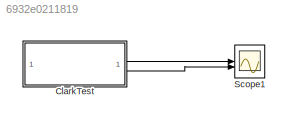
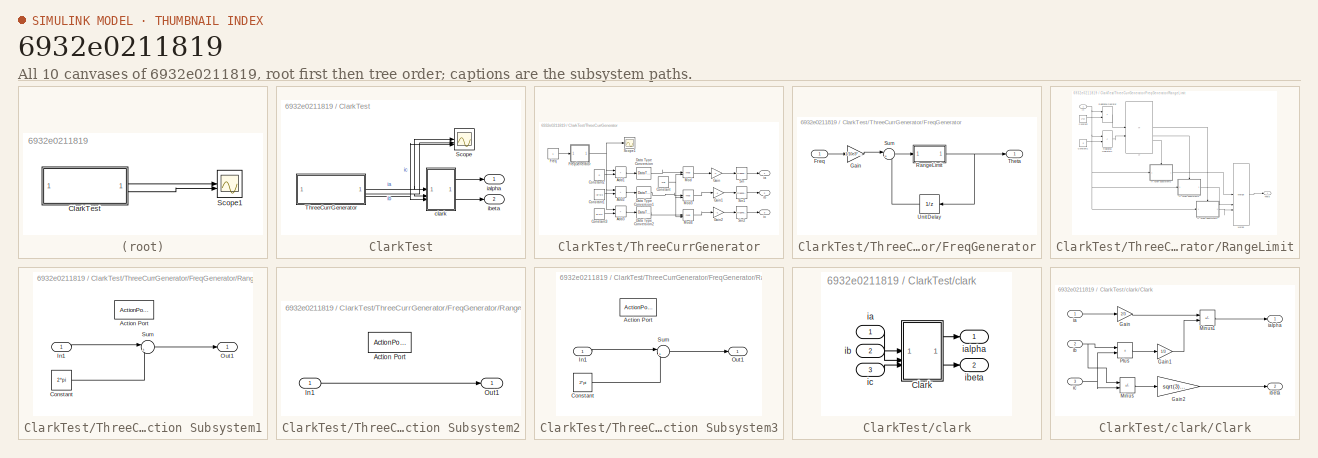
[diagram: thumbnail index - all 10 canvases of the model, root first then tree order]
MODEL slx_6932e0211819
KIND model
CONFIG AbsTol = auto
CONFIG EnableMultiTasking = off
CONFIG FixedStep = 1e-4
CONFIG MaxStep = auto
CONFIG MinStep = auto
CONFIG RelTol = 1e-3
CONFIG SampleTimeConstraint = Unconstrained
CONFIG SolverName = FixedStepAuto
CONFIG StartTime = 0.0
CONFIG StopTime = 10.0
BLOCK [SubSystem] ClarkTest
  TreatAsAtomicUnit = on
BLOCK [Scope] ClarkTest/Scope
  Floating = off
  NumInputPorts = 3
  ScopeSpecificationString = Simulink.scopes.TimeScopeBlockCfg('CurrentConfiguration', extmgr.ConfigurationSet(extmgr.Configuration('Core','General UI',true),extmgr.Configuration('Core','Source UI',true),extmgr.Configuration('Sources','WiredSimulink',true,'DataLoggingVariableName','ScopeData3'),extmgr.Configuration('Visuals','Time Domain',true,'SerializedDisplays',{struct('MinYLimReal','-1.25','MaxYLimReal','1.25','YLabelReal...<+1434ch>
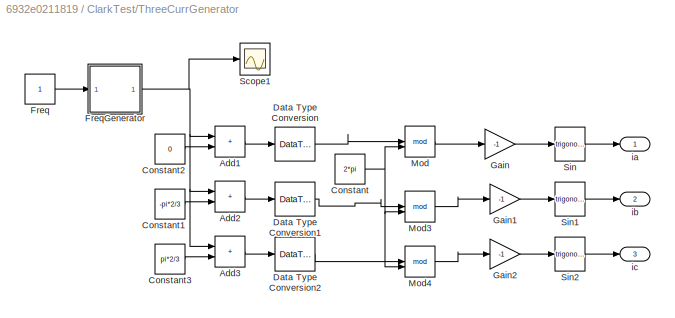
BLOCK [SubSystem] ClarkTest/ThreeCurrGenerator
BLOCK [Sum] ClarkTest/ThreeCurrGenerator/Add1
  AccumDataTypeStr = single
  IconShape = rectangular
  OutDataTypeStr = single
BLOCK [Sum] ClarkTest/ThreeCurrGenerator/Add2
  AccumDataTypeStr = single
  IconShape = rectangular
  OutDataTypeStr = single
BLOCK [Sum] ClarkTest/ThreeCurrGenerator/Add3
  AccumDataTypeStr = single
  IconShape = rectangular
  OutDataTypeStr = single
BLOCK [Constant] ClarkTest/ThreeCurrGenerator/Constant
  OutDataTypeStr = single
  Value = 2*pi
BLOCK [Constant] ClarkTest/ThreeCurrGenerator/Constant1
  OutDataTypeStr = single
  Value = -pi*2/3
BLOCK [Constant] ClarkTest/ThreeCurrGenerator/Constant2
  OutDataTypeStr = single
  Value = 0
BLOCK [Constant] ClarkTest/ThreeCurrGenerator/Constant3
  OutDataTypeStr = single
  Value = pi*2/3
BLOCK [DataTypeConversion] ClarkTest/ThreeCurrGenerator/Data Type Conversion
  OutDataTypeStr = single
  RndMeth = Floor
  SaturateOnIntegerOverflow = off
BLOCK [DataTypeConversion] ClarkTest/ThreeCurrGenerator/Data Type Conversion1
  OutDataTypeStr = single
  RndMeth = Floor
  SaturateOnIntegerOverflow = off
BLOCK [DataTypeConversion] ClarkTest/ThreeCurrGenerator/Data Type Conversion2
  OutDataTypeStr = single
  RndMeth = Floor
  SaturateOnIntegerOverflow = off
BLOCK [Constant] ClarkTest/ThreeCurrGenerator/Freq
  OutDataTypeStr = single
BLOCK [SubSystem] ClarkTest/ThreeCurrGenerator/FreqGenerator
BLOCK [Inport] ClarkTest/ThreeCurrGenerator/FreqGenerator/Freq
BLOCK [Gain] ClarkTest/ThreeCurrGenerator/FreqGenerator/Gain
  Gain = 1/10e3*2*pi
  OutDataTypeStr = single
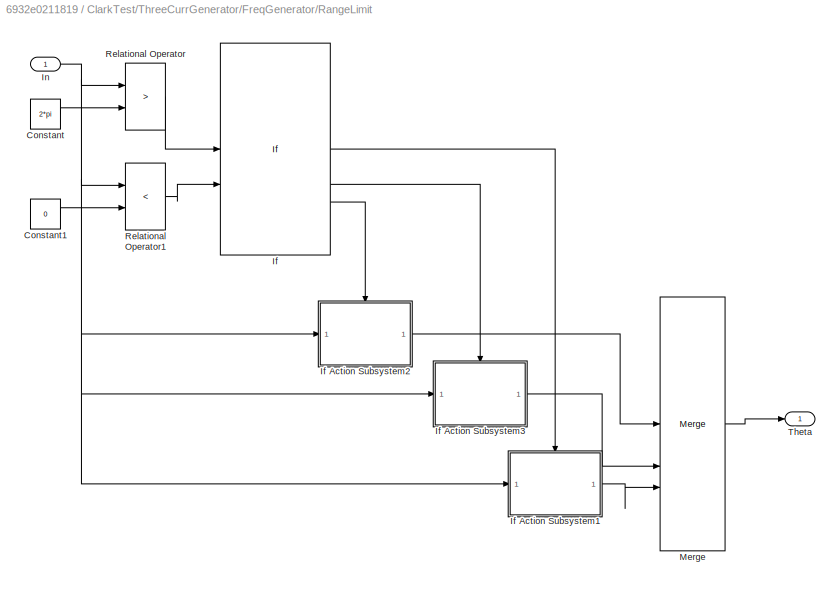
BLOCK [SubSystem] ClarkTest/ThreeCurrGenerator/FreqGenerator/RangeLimit
BLOCK [Constant] ClarkTest/ThreeCurrGenerator/FreqGenerator/RangeLimit/Constant
  OutDataTypeStr = single
  SampleTime = -1
  Value = 2*pi
BLOCK [Constant] ClarkTest/ThreeCurrGenerator/FreqGenerator/RangeLimit/Constant1
  OutDataTypeStr = single
  SampleTime = -1
  Value = 0
BLOCK [If] ClarkTest/ThreeCurrGenerator/FreqGenerator/RangeLimit/If
  ElseIfExpressions = u2
  IfExpression = u1
  NumInputs = 2
BLOCK [SubSystem] ClarkTest/ThreeCurrGenerator/FreqGenerator/RangeLimit/If Action Subsystem1
  TreatAsAtomicUnit = on
BLOCK [ActionPort] ClarkTest/ThreeCurrGenerator/FreqGenerator/RangeLimit/If Action Subsystem1/Action Port
  ActionPortLabel = if(u1)
BLOCK [Constant] ClarkTest/ThreeCurrGenerator/FreqGenerator/RangeLimit/If Action Subsystem1/Constant
  OutDataTypeStr = single
  SampleTime = -1
  Value = 2*pi
BLOCK [Inport] ClarkTest/ThreeCurrGenerator/FreqGenerator/RangeLimit/If Action Subsystem1/In1
BLOCK [Outport] ClarkTest/ThreeCurrGenerator/FreqGenerator/RangeLimit/If Action Subsystem1/Out1
BLOCK [Sum] ClarkTest/ThreeCurrGenerator/FreqGenerator/RangeLimit/If Action Subsystem1/Sum
  Inputs = |+-
BLOCK [SubSystem] ClarkTest/ThreeCurrGenerator/FreqGenerator/RangeLimit/If Action Subsystem2
  TreatAsAtomicUnit = on
BLOCK [ActionPort] ClarkTest/ThreeCurrGenerator/FreqGenerator/RangeLimit/If Action Subsystem2/Action Port
  ActionPortLabel = else
BLOCK [Inport] ClarkTest/ThreeCurrGenerator/FreqGenerator/RangeLimit/If Action Subsystem2/In1
BLOCK [Outport] ClarkTest/ThreeCurrGenerator/FreqGenerator/RangeLimit/If Action Subsystem2/Out1
BLOCK [SubSystem] ClarkTest/ThreeCurrGenerator/FreqGenerator/RangeLimit/If Action Subsystem3
  TreatAsAtomicUnit = on
BLOCK [ActionPort] ClarkTest/ThreeCurrGenerator/FreqGenerator/RangeLimit/If Action Subsystem3/Action Port
  ActionPortLabel = elseif(u2)
BLOCK [Constant] ClarkTest/ThreeCurrGenerator/FreqGenerator/RangeLimit/If Action Subsystem3/Constant
  OutDataTypeStr = single
  SampleTime = -1
  Value = 2*pi
BLOCK [Inport] ClarkTest/ThreeCurrGenerator/FreqGenerator/RangeLimit/If Action Subsystem3/In1
BLOCK [Outport] ClarkTest/ThreeCurrGenerator/FreqGenerator/RangeLimit/If Action Subsystem3/Out1
BLOCK [Sum] ClarkTest/ThreeCurrGenerator/FreqGenerator/RangeLimit/If Action Subsystem3/Sum
  Inputs = |++
BLOCK [Inport] ClarkTest/ThreeCurrGenerator/FreqGenerator/RangeLimit/In
BLOCK [Merge] ClarkTest/ThreeCurrGenerator/FreqGenerator/RangeLimit/Merge
  Inputs = 3
BLOCK [RelationalOperator] ClarkTest/ThreeCurrGenerator/FreqGenerator/RangeLimit/Relational Operator
  InputSameDT = off
  Operator = >
  OutDataTypeStr = boolean
  RndMeth = Simplest
BLOCK [RelationalOperator] ClarkTest/ThreeCurrGenerator/FreqGenerator/RangeLimit/Relational Operator1
  InputSameDT = off
  Operator = <
  OutDataTypeStr = boolean
  RndMeth = Simplest
BLOCK [Outport] ClarkTest/ThreeCurrGenerator/FreqGenerator/RangeLimit/Theta
BLOCK [Sum] ClarkTest/ThreeCurrGenerator/FreqGenerator/Sum
  Inputs = |++
  OutDataTypeStr = Inherit: Same as first input
BLOCK [Outport] ClarkTest/ThreeCurrGenerator/FreqGenerator/Theta
BLOCK [UnitDelay] ClarkTest/ThreeCurrGenerator/FreqGenerator/Unit Delay
  HasFrameUpgradeWarning = on
  NameLocation = top
  SampleTime = -1
BLOCK [Gain] ClarkTest/ThreeCurrGenerator/Gain
  Gain = -1
BLOCK [Gain] ClarkTest/ThreeCurrGenerator/Gain1
  Gain = -1
BLOCK [Gain] ClarkTest/ThreeCurrGenerator/Gain2
  Gain = -1
BLOCK [Math] ClarkTest/ThreeCurrGenerator/Mod
  Operator = mod
BLOCK [Math] ClarkTest/ThreeCurrGenerator/Mod3
  Operator = mod
BLOCK [Math] ClarkTest/ThreeCurrGenerator/Mod4
  Operator = mod
BLOCK [Scope] ClarkTest/ThreeCurrGenerator/Scope1
  Floating = off
  NumInputPorts = 1
  ScopeSpecificationString = Simulink.scopes.TimeScopeBlockCfg('CurrentConfiguration', extmgr.ConfigurationSet(extmgr.Configuration('Core','General UI',true),extmgr.Configuration('Core','Source UI',true),extmgr.Configuration('Sources','WiredSimulink',true),extmgr.Configuration('Visuals','Time Domain',true,'SerializedDisplays',{struct('MinYLimReal','-0.78536','MaxYLimReal','7.06826','YLabelReal','','MinYLimMag','0.00000','MaxY...<+1333ch>
BLOCK [Trigonometry] ClarkTest/ThreeCurrGenerator/Sin
  ApproximationMethod = Lookup
BLOCK [Trigonometry] ClarkTest/ThreeCurrGenerator/Sin1
  ApproximationMethod = Lookup
BLOCK [Trigonometry] ClarkTest/ThreeCurrGenerator/Sin2
  ApproximationMethod = Lookup
BLOCK [Outport] ClarkTest/ThreeCurrGenerator/ia
BLOCK [Outport] ClarkTest/ThreeCurrGenerator/ib
  Port = 2
BLOCK [Outport] ClarkTest/ThreeCurrGenerator/ic
  Port = 3
BLOCK [SubSystem] ClarkTest/clark
BLOCK [SubSystem] ClarkTest/clark/Clark
BLOCK [Gain] ClarkTest/clark/Clark/Gain
  Gain = 2/3
BLOCK [Gain] ClarkTest/clark/Clark/Gain1
  Gain = 1/3
BLOCK [Gain] ClarkTest/clark/Clark/Gain2
  Gain = sqrt(3)/3
BLOCK [Sum] ClarkTest/clark/Clark/Minus
  IconShape = rectangular
  Inputs = +-
BLOCK [Sum] ClarkTest/clark/Clark/Minus1
  IconShape = rectangular
  Inputs = +-
BLOCK [Sum] ClarkTest/clark/Clark/Plus
  IconShape = rectangular
BLOCK [Inport] ClarkTest/clark/Clark/ia
BLOCK [Outport] ClarkTest/clark/Clark/ialpha
BLOCK [Inport] ClarkTest/clark/Clark/ib
  Port = 2
BLOCK [Outport] ClarkTest/clark/Clark/ibeta
  Port = 2
BLOCK [Inport] ClarkTest/clark/Clark/ic
  Port = 3
BLOCK [Inport] ClarkTest/clark/ia
BLOCK [Outport] ClarkTest/clark/ialpha
BLOCK [Inport] ClarkTest/clark/ib
  Port = 2
BLOCK [Outport] ClarkTest/clark/ibeta
  Port = 2
BLOCK [Inport] ClarkTest/clark/ic
  Port = 3
BLOCK [Outport] ClarkTest/ialpha
BLOCK [Outport] ClarkTest/ibeta
  Port = 2
BLOCK [Scope] Scope1
  Floating = off
  NumInputPorts = 2
  ScopeSpecificationString = Simulink.scopes.TimeScopeBlockCfg('CurrentConfiguration', extmgr.ConfigurationSet(extmgr.Configuration('Core','General UI',true),extmgr.Configuration('Core','Source UI',true),extmgr.Configuration('Sources','WiredSimulink',true,'DataLoggingVariableName','ScopeData2'),extmgr.Configuration('Visuals','Time Domain',true,'SerializedDisplays',{struct('MinYLimReal','-1.25','MaxYLimReal','1.25','YLabelReal...<+1366ch>
LINE ClarkTest/ThreeCurrGenerator/Add1:1 -> ClarkTest/ThreeCurrGenerator/Data Type Conversion:1
LINE ClarkTest/ThreeCurrGenerator/Add2:1 -> ClarkTest/ThreeCurrGenerator/Data Type Conversion1:1
LINE ClarkTest/ThreeCurrGenerator/Add3:1 -> ClarkTest/ThreeCurrGenerator/Data Type Conversion2:1
LINE ClarkTest/ThreeCurrGenerator/Constant1:1 -> ClarkTest/ThreeCurrGenerator/Add2:2
LINE ClarkTest/ThreeCurrGenerator/Constant2:1 -> ClarkTest/ThreeCurrGenerator/Add1:2
LINE ClarkTest/ThreeCurrGenerator/Constant3:1 -> ClarkTest/ThreeCurrGenerator/Add3:2
NET ClarkTest/ThreeCurrGenerator/Constant:1 -> ClarkTest/ThreeCurrGenerator/Mod3:2, ClarkTest/ThreeCurrGenerator/Mod4:2, ClarkTest/ThreeCurrGenerator/Mod:2
LINE ClarkTest/ThreeCurrGenerator/Data Type Conversion1:1 -> ClarkTest/ThreeCurrGenerator/Mod3:1
LINE ClarkTest/ThreeCurrGenerator/Data Type Conversion2:1 -> ClarkTest/ThreeCurrGenerator/Mod4:1
LINE ClarkTest/ThreeCurrGenerator/Data Type Conversion:1 -> ClarkTest/ThreeCurrGenerator/Mod:1
LINE ClarkTest/ThreeCurrGenerator/Freq:1 -> ClarkTest/ThreeCurrGenerator/FreqGenerator:1
LINE ClarkTest/ThreeCurrGenerator/FreqGenerator/Freq:1 -> ClarkTest/ThreeCurrGenerator/FreqGenerator/Gain:1
LINE ClarkTest/ThreeCurrGenerator/FreqGenerator/Gain:1 -> ClarkTest/ThreeCurrGenerator/FreqGenerator/Sum:1
LINE ClarkTest/ThreeCurrGenerator/FreqGenerator/RangeLimit/Constant1:1 -> ClarkTest/ThreeCurrGenerator/FreqGenerator/RangeLimit/Relational Operator1:2
LINE ClarkTest/ThreeCurrGenerator/FreqGenerator/RangeLimit/Constant:1 -> ClarkTest/ThreeCurrGenerator/FreqGenerator/RangeLimit/Relational Operator:2
LINE ClarkTest/ThreeCurrGenerator/FreqGenerator/RangeLimit/If Action Subsystem1/Constant:1 -> ClarkTest/ThreeCurrGenerator/FreqGenerator/RangeLimit/If Action Subsystem1/Sum:2
LINE ClarkTest/ThreeCurrGenerator/FreqGenerator/RangeLimit/If Action Subsystem1/In1:1 -> ClarkTest/ThreeCurrGenerator/FreqGenerator/RangeLimit/If Action Subsystem1/Sum:1
LINE ClarkTest/ThreeCurrGenerator/FreqGenerator/RangeLimit/If Action Subsystem1/Sum:1 -> ClarkTest/ThreeCurrGenerator/FreqGenerator/RangeLimit/If Action Subsystem1/Out1:1
LINE ClarkTest/ThreeCurrGenerator/FreqGenerator/RangeLimit/If Action Subsystem1:1 -> ClarkTest/ThreeCurrGenerator/FreqGenerator/RangeLimit/Merge:3
LINE ClarkTest/ThreeCurrGenerator/FreqGenerator/RangeLimit/If Action Subsystem2/In1:1 -> ClarkTest/ThreeCurrGenerator/FreqGenerator/RangeLimit/If Action Subsystem2/Out1:1
LINE ClarkTest/ThreeCurrGenerator/FreqGenerator/RangeLimit/If Action Subsystem2:1 -> ClarkTest/ThreeCurrGenerator/FreqGenerator/RangeLimit/Merge:1
LINE ClarkTest/ThreeCurrGenerator/FreqGenerator/RangeLimit/If Action Subsystem3/Constant:1 -> ClarkTest/ThreeCurrGenerator/FreqGenerator/RangeLimit/If Action Subsystem3/Sum:2
LINE ClarkTest/ThreeCurrGenerator/FreqGenerator/RangeLimit/If Action Subsystem3/In1:1 -> ClarkTest/ThreeCurrGenerator/FreqGenerator/RangeLimit/If Action Subsystem3/Sum:1
LINE ClarkTest/ThreeCurrGenerator/FreqGenerator/RangeLimit/If Action Subsystem3/Sum:1 -> ClarkTest/ThreeCurrGenerator/FreqGenerator/RangeLimit/If Action Subsystem3/Out1:1
LINE ClarkTest/ThreeCurrGenerator/FreqGenerator/RangeLimit/If Action Subsystem3:1 -> ClarkTest/ThreeCurrGenerator/FreqGenerator/RangeLimit/Merge:2
LINE ClarkTest/ThreeCurrGenerator/FreqGenerator/RangeLimit/If:1 -> ClarkTest/ThreeCurrGenerator/FreqGenerator/RangeLimit/If Action Subsystem1:ifaction
LINE ClarkTest/ThreeCurrGenerator/FreqGenerator/RangeLimit/If:2 -> ClarkTest/ThreeCurrGenerator/FreqGenerator/RangeLimit/If Action Subsystem3:ifaction
LINE ClarkTest/ThreeCurrGenerator/FreqGenerator/RangeLimit/If:3 -> ClarkTest/ThreeCurrGenerator/FreqGenerator/RangeLimit/If Action Subsystem2:ifaction
NET ClarkTest/ThreeCurrGenerator/FreqGenerator/RangeLimit/In:1 -> ClarkTest/ThreeCurrGenerator/FreqGenerator/RangeLimit/If Action Subsystem1:1, ClarkTest/ThreeCurrGenerator/FreqGenerator/RangeLimit/If Action Subsystem2:1, ClarkTest/ThreeCurrGenerator/FreqGenerator/RangeLimit/If Action Subsystem3:1, ClarkTest/ThreeCurrGenerator/FreqGenerator/RangeLimit/Relational Operator1:1, ClarkTest/ThreeCurrGenerator/FreqGenerator/RangeLimit/Relational Operator:1
LINE ClarkTest/ThreeCurrGenerator/FreqGenerator/RangeLimit/Merge:1 -> ClarkTest/ThreeCurrGenerator/FreqGenerator/RangeLimit/Theta:1
LINE ClarkTest/ThreeCurrGenerator/FreqGenerator/RangeLimit/Relational Operator1:1 -> ClarkTest/ThreeCurrGenerator/FreqGenerator/RangeLimit/If:2
LINE ClarkTest/ThreeCurrGenerator/FreqGenerator/RangeLimit/Relational Operator:1 -> ClarkTest/ThreeCurrGenerator/FreqGenerator/RangeLimit/If:1
NET ClarkTest/ThreeCurrGenerator/FreqGenerator/RangeLimit:1 -> ClarkTest/ThreeCurrGenerator/FreqGenerator/Theta:1, ClarkTest/ThreeCurrGenerator/FreqGenerator/Unit Delay:1
LINE ClarkTest/ThreeCurrGenerator/FreqGenerator/Sum:1 -> ClarkTest/ThreeCurrGenerator/FreqGenerator/RangeLimit:1
LINE ClarkTest/ThreeCurrGenerator/FreqGenerator/Unit Delay:1 -> ClarkTest/ThreeCurrGenerator/FreqGenerator/Sum:2
NET ClarkTest/ThreeCurrGenerator/FreqGenerator:1 -> ClarkTest/ThreeCurrGenerator/Add1:1, ClarkTest/ThreeCurrGenerator/Add2:1, ClarkTest/ThreeCurrGenerator/Add3:1, ClarkTest/ThreeCurrGenerator/Scope1:1
LINE ClarkTest/ThreeCurrGenerator/Gain1:1 -> ClarkTest/ThreeCurrGenerator/Sin1:1
LINE ClarkTest/ThreeCurrGenerator/Gain2:1 -> ClarkTest/ThreeCurrGenerator/Sin2:1
LINE ClarkTest/ThreeCurrGenerator/Gain:1 -> ClarkTest/ThreeCurrGenerator/Sin:1
LINE ClarkTest/ThreeCurrGenerator/Mod3:1 -> ClarkTest/ThreeCurrGenerator/Gain1:1
LINE ClarkTest/ThreeCurrGenerator/Mod4:1 -> ClarkTest/ThreeCurrGenerator/Gain2:1
LINE ClarkTest/ThreeCurrGenerator/Mod:1 -> ClarkTest/ThreeCurrGenerator/Gain:1
LINE ClarkTest/ThreeCurrGenerator/Sin1:1 -> ClarkTest/ThreeCurrGenerator/ib:1
LINE ClarkTest/ThreeCurrGenerator/Sin2:1 -> ClarkTest/ThreeCurrGenerator/ic:1
LINE ClarkTest/ThreeCurrGenerator/Sin:1 -> ClarkTest/ThreeCurrGenerator/ia:1
NET ClarkTest/ThreeCurrGenerator:1 -> ClarkTest/Scope:1, ClarkTest/clark:1
NET ClarkTest/ThreeCurrGenerator:2 -> ClarkTest/Scope:2, ClarkTest/clark:2
NET ClarkTest/ThreeCurrGenerator:3 -> ClarkTest/Scope:3, ClarkTest/clark:3
LINE ClarkTest/clark/Clark/Gain1:1 -> ClarkTest/clark/Clark/Minus1:2
LINE ClarkTest/clark/Clark/Gain2:1 -> ClarkTest/clark/Clark/ibeta:1
LINE ClarkTest/clark/Clark/Gain:1 -> ClarkTest/clark/Clark/Minus1:1
LINE ClarkTest/clark/Clark/Minus1:1 -> ClarkTest/clark/Clark/ialpha:1
LINE ClarkTest/clark/Clark/Minus:1 -> ClarkTest/clark/Clark/Gain2:1
LINE ClarkTest/clark/Clark/Plus:1 -> ClarkTest/clark/Clark/Gain1:1
LINE ClarkTest/clark/Clark/ia:1 -> ClarkTest/clark/Clark/Gain:1
NET ClarkTest/clark/Clark/ib:1 -> ClarkTest/clark/Clark/Minus:1, ClarkTest/clark/Clark/Plus:1
NET ClarkTest/clark/Clark/ic:1 -> ClarkTest/clark/Clark/Minus:2, ClarkTest/clark/Clark/Plus:2
LINE ClarkTest/clark/Clark:1 -> ClarkTest/clark/ialpha:1
LINE ClarkTest/clark/Clark:2 -> ClarkTest/clark/ibeta:1
LINE ClarkTest/clark/ia:1 -> ClarkTest/clark/Clark:1
LINE ClarkTest/clark/ib:1 -> ClarkTest/clark/Clark:2
LINE ClarkTest/clark/ic:1 -> ClarkTest/clark/Clark:3
LINE ClarkTest/clark:1 -> ClarkTest/ialpha:1
LINE ClarkTest/clark:2 -> ClarkTest/ibeta:1
LINE ClarkTest:1 -> Scope1:1
LINE ClarkTest:2 -> Scope1:2
note: NET lines group one-source signal fan-out (src -> all destinations, sorted); 1:1 wires keep LINE
